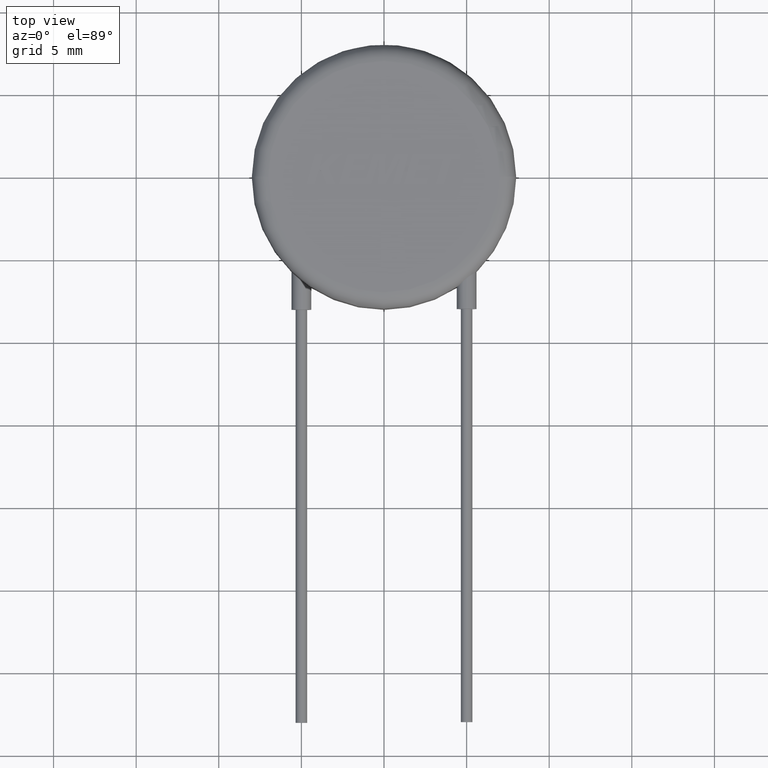
[diagram: clean part render]
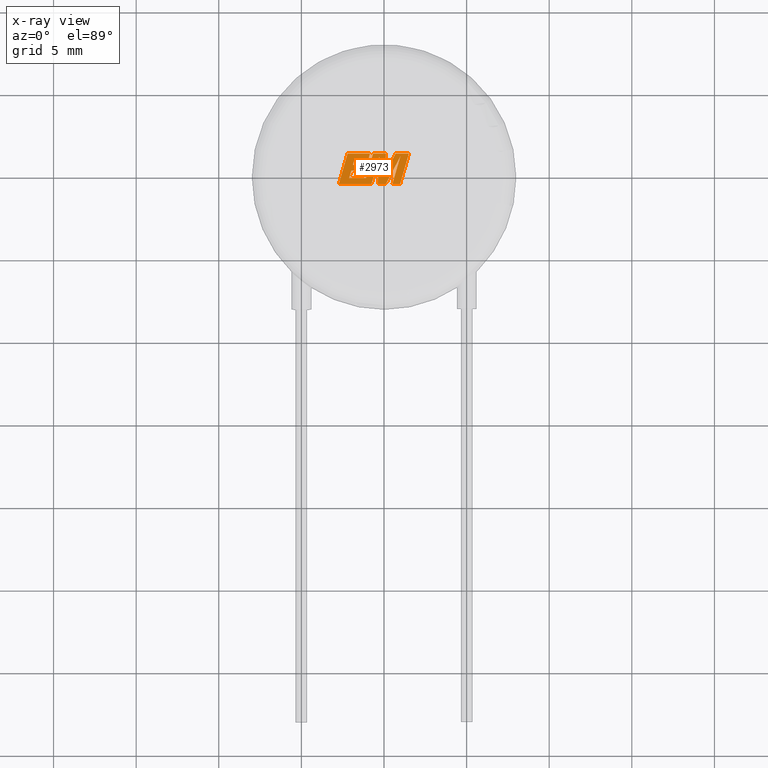
[diagram: x-ray — body ghosted, one internal face saturated and labeled with its STEP entity id]
A machine part, top view, then the same camera in x-ray: the body is ghosted and one INTERNAL B-rep face — a face not visible from any outside direction — is saturated and labeled: STEP entity #2973.
In plain terms, the highlighted planar face has unit normal (0, 0, -1).
Its self-contained STEP definition (entity closure, byte-faithful):
#1 = VERTEX_POINT ( 'NONE', #2518 ) ;
#6 = CARTESIAN_POINT ( 'NONE',  ( -0.8469343040770292985, 1.392404873501481344, 4.998999999999999666 ) ) ;
#16 = ORIENTED_EDGE ( 'NONE', *, *, #776, .F. ) ;
#18 = VERTEX_POINT ( 'NONE', #1459 ) ;
#39 = CARTESIAN_POINT ( 'NONE',  ( 1.506768792901826970, 1.392404873501481788, 4.998999999999999666 ) ) ;
#41 = CARTESIAN_POINT ( 'NONE',  ( -1.883600881883110478, 0.7004086037278132171, 4.998999999999999666 ) ) ;
#48 = ORIENTED_EDGE ( 'NONE', *, *, #299, .F. ) ;
#73 = VERTEX_POINT ( 'NONE', #3334 ) ;
#111 = LINE ( 'NONE', #2769, #1698 ) ;
#160 = CARTESIAN_POINT ( 'NONE',  ( -0.6635320626051351978, 1.392404873501481344, 4.998999999999999666 ) ) ;
#161 = CARTESIAN_POINT ( 'NONE',  ( -0.7535615206849134440, -0.4463250368678168267, 4.998999999999999666 ) ) ;
#209 = EDGE_CURVE ( 'NONE', #2690, #2967, #681, .T. ) ;
#218 = CARTESIAN_POINT ( 'NONE',  ( -1.191487204261650668, 0.3604905181520938751, 4.998999999999999666 ) ) ;
#231 = ORIENTED_EDGE ( 'NONE', *, *, #3189, .F. ) ;
#233 = CARTESIAN_POINT ( 'NONE',  ( 0.9781203858598551681, -0.4463250368678163826, 4.998999999999999666 ) ) ;
#259 = DIRECTION ( 'NONE',  ( 0.2732148821745907785, 0.9619530280415590218, 0.000000000000000000 ) ) ;
#265 = VECTOR ( 'NONE', #1902, 1000.000000000000000 ) ;
#299 = EDGE_CURVE ( 'NONE', #786, #1903, #2723, .T. ) ;
#301 = EDGE_CURVE ( 'NONE', #1719, #1250, #2473, .T. ) ;
#315 = CARTESIAN_POINT ( 'NONE',  ( -0.7535615206849134440, -0.4463250368678168267, 4.998999999999999666 ) ) ;
#322 = LINE ( 'NONE', #2539, #3060 ) ;
#349 = ORIENTED_EDGE ( 'NONE', *, *, #1968, .F. ) ;
#363 = LINE ( 'NONE', #39, #1127 ) ;
#484 = VERTEX_POINT ( 'NONE', #561 ) ;
#509 = VERTEX_POINT ( 'NONE', #2726 ) ;
#550 = LINE ( 'NONE', #2145, #3396 ) ;
#557 = ORIENTED_EDGE ( 'NONE', *, *, #2183, .F. ) ;
#561 = CARTESIAN_POINT ( 'NONE',  ( -1.191487204261650668, 0.3604905181520938751, 4.998999999999999666 ) ) ;
#575 = LINE ( 'NONE', #1614, #2347 ) ;
#576 = VECTOR ( 'NONE', #2168, 1000.000000000000000 ) ;
#581 = CARTESIAN_POINT ( 'NONE',  ( 0.7003143599246278717, 1.392404873501481788, 4.998999999999999666 ) ) ;
#616 = CARTESIAN_POINT ( 'NONE',  ( -0.3752957953616926079, -0.4463250368678168267, 4.998999999999999666 ) ) ;
#633 = VECTOR ( 'NONE', #1355, 1000.000000000000000 ) ;
#651 = LINE ( 'NONE', #2004, #2733 ) ;
#661 = EDGE_CURVE ( 'NONE', #2805, #2080, #716, .T. ) ;
#677 = LINE ( 'NONE', #859, #1660 ) ;
#680 = ORIENTED_EDGE ( 'NONE', *, *, #2579, .F. ) ;
#681 = LINE ( 'NONE', #3169, #3208 ) ;
#709 = DIRECTION ( 'NONE',  ( -1.000000000000000000, 0.000000000000000000, 0.000000000000000000 ) ) ;
#715 = LINE ( 'NONE', #218, #2175 ) ;
#716 = LINE ( 'NONE', #3381, #1282 ) ;
#733 = DIRECTION ( 'NONE',  ( 0.2763139702539118003, 0.9610674221107071702, 0.000000000000000000 ) ) ;
#738 = FACE_OUTER_BOUND ( 'NONE', #1958, .T. ) ;
#744 = ORIENTED_EDGE ( 'NONE', *, *, #3082, .F. ) ;
#763 = VERTEX_POINT ( 'NONE', #1099 ) ;
#776 = EDGE_CURVE ( 'NONE', #2633, #2012, #1649, .T. ) ;
#786 = VERTEX_POINT ( 'NONE', #1849 ) ;
#806 = CARTESIAN_POINT ( 'NONE',  ( 1.506768792901826970, 1.392404873501481788, 4.998999999999999666 ) ) ;
#859 = CARTESIAN_POINT ( 'NONE',  ( -1.980579764965901823, 0.3604905181520938751, 4.998999999999999666 ) ) ;
#889 = DIRECTION ( 'NONE',  ( 0.4668459304955209777, 0.8843386665637612554, 0.000000000000000000 ) ) ;
#934 = ORIENTED_EDGE ( 'NONE', *, *, #2793, .F. ) ;
#1025 = ORIENTED_EDGE ( 'NONE', *, *, #2359, .F. ) ;
#1088 = EDGE_CURVE ( 'NONE', #2080, #509, #363, .T. ) ;
#1099 = CARTESIAN_POINT ( 'NONE',  ( 0.04880565978952582096, 0.07879260075274539810, 4.998999999999999666 ) ) ;
#1111 = DIRECTION ( 'NONE',  ( 0.2793947940878252489, 0.9601763114327606097, 0.000000000000000000 ) ) ;
#1113 = DIRECTION ( 'NONE',  ( 0.05375259206908304666, 0.9985542843760947251, 0.000000000000000000 ) ) ;
#1127 = VECTOR ( 'NONE', #1436, 1000.000000000000000 ) ;
#1135 = ORIENTED_EDGE ( 'NONE', *, *, #301, .F. ) ;
#1164 = EDGE_CURVE ( 'NONE', #2153, #1548, #3137, .T. ) ;
#1190 = LINE ( 'NONE', #1663, #2501 ) ;
#1216 = CARTESIAN_POINT ( 'NONE',  ( -1.883600881883110478, 0.7004086037278132171, 4.998999999999999666 ) ) ;
#1250 = VERTEX_POINT ( 'NONE', #1821 ) ;
#1267 = ORIENTED_EDGE ( 'NONE', *, *, #661, .F. ) ;
#1269 = DIRECTION ( 'NONE',  ( -0.2760118818968562704, -0.9611542233438689076, 0.000000000000000000 ) ) ;
#1282 = VECTOR ( 'NONE', #733, 1000.000000000000114 ) ;
#1293 = LINE ( 'NONE', #2925, #576 ) ;
#1311 = EDGE_CURVE ( 'NONE', #2776, #786, #2996, .T. ) ;
#1330 = ORIENTED_EDGE ( 'NONE', *, *, #1834, .F. ) ;
#1355 = DIRECTION ( 'NONE',  ( 1.000000000000000000, 0.000000000000000000, 0.000000000000000000 ) ) ;
#1359 = ORIENTED_EDGE ( 'NONE', *, *, #2444, .F. ) ;
#1370 = CARTESIAN_POINT ( 'NONE',  ( -0.9463396160344149655, 1.042412076331241000, 4.998999999999999666 ) ) ;
#1436 = DIRECTION ( 'NONE',  ( -1.000000000000000000, 0.000000000000000000, 0.000000000000000000 ) ) ;
#1455 = CARTESIAN_POINT ( 'NONE',  ( -2.205326341746206342, 1.392404873501480900, 4.998999999999999666 ) ) ;
#1459 = CARTESIAN_POINT ( 'NONE',  ( -2.734438790809887276, -0.4463250368678172153, 4.998999999999999666 ) ) ;
#1523 = LINE ( 'NONE', #2349, #3351 ) ;
#1540 = LINE ( 'NONE', #41, #3408 ) ;
#1541 = VECTOR ( 'NONE', #709, 1000.000000000000000 ) ;
#1548 = VERTEX_POINT ( 'NONE', #2419 ) ;
#1588 = CARTESIAN_POINT ( 'NONE',  ( 0.5108706928720705420, -0.4463250368678163826, 4.998999999999999666 ) ) ;
#1614 = CARTESIAN_POINT ( 'NONE',  ( 0.04880565978952582096, 0.07879260075274539810, 4.998999999999999666 ) ) ;
#1620 = VERTEX_POINT ( 'NONE', #1455 ) ;
#1628 = CARTESIAN_POINT ( 'NONE',  ( -2.110790660100091198, -0.09650555604264220155, 4.998999999999999666 ) ) ;
#1640 = CARTESIAN_POINT ( 'NONE',  ( 0.1195179542924952598, 1.392404873501481344, 4.998999999999999666 ) ) ;
#1649 = LINE ( 'NONE', #2382, #265 ) ;
#1660 = VECTOR ( 'NONE', #2843, 1000.000000000000000 ) ;
#1663 = CARTESIAN_POINT ( 'NONE',  ( -0.8469343040770292985, 1.392404873501481344, 4.998999999999999666 ) ) ;
#1671 = VERTEX_POINT ( 'NONE', #1216 ) ;
#1698 = VECTOR ( 'NONE', #3003, 1000.000000000000227 ) ;
#1710 = DIRECTION ( 'NONE',  ( -1.000000000000000000, 2.630718451273292658E-16, 0.000000000000000000 ) ) ;
#1719 = VERTEX_POINT ( 'NONE', #161 ) ;
#1731 = DIRECTION ( 'NONE',  ( -1.000000000000000000, -1.516487192649569781E-16, 0.000000000000000000 ) ) ;
#1744 = VECTOR ( 'NONE', #259, 1000.000000000000114 ) ;
#1821 = CARTESIAN_POINT ( 'NONE',  ( -0.2835387661257833258, 1.190647871675215352, 4.998999999999999666 ) ) ;
#1834 = EDGE_CURVE ( 'NONE', #18, #1719, #1293, .T. ) ;
#1849 = CARTESIAN_POINT ( 'NONE',  ( -0.9463396160344149655, 1.042412076331241000, 4.998999999999999666 ) ) ;
#1902 = DIRECTION ( 'NONE',  ( 0.2740217765954052198, 0.9617234872620600283, 0.000000000000000000 ) ) ;
#1903 = VERTEX_POINT ( 'NONE', #6 ) ;
#1952 = EDGE_CURVE ( 'NONE', #2764, #73, #111, .T. ) ;
#1958 = EDGE_LOOP ( 'NONE', ( #2902, #1267, #1025, #3326, #349, #2647, #2931, #1135, #1330, #3404, #2105, #48, #3000, #680, #934, #231, #744, #16, #557, #3065, #2751, #3496, #1359 ) ) ;
#1959 = PLANE ( 'NONE',  #2959 ) ;
#1968 = EDGE_CURVE ( 'NONE', #1548, #2690, #651, .T. ) ;
#1987 = CARTESIAN_POINT ( 'NONE',  ( -1.980579764965901823, 0.3604905181520938751, 4.998999999999999666 ) ) ;
#1989 = EDGE_CURVE ( 'NONE', #1903, #1620, #1190, .T. ) ;
#2004 = CARTESIAN_POINT ( 'NONE',  ( 0.1148931549349949816, -0.4463250368678166047, 4.998999999999999666 ) ) ;
#2012 = VERTEX_POINT ( 'NONE', #1987 ) ;
#2074 = CARTESIAN_POINT ( 'NONE',  ( -1.094396504180112695, 0.7004086037278132171, 4.998999999999999666 ) ) ;
#2080 = VERTEX_POINT ( 'NONE', #806 ) ;
#2096 = EDGE_CURVE ( 'NONE', #1250, #2153, #550, .T. ) ;
#2105 = ORIENTED_EDGE ( 'NONE', *, *, #1989, .F. ) ;
#2145 = CARTESIAN_POINT ( 'NONE',  ( -0.2835387661257833258, 1.190647871675215352, 4.998999999999999666 ) ) ;
#2153 = VERTEX_POINT ( 'NONE', #616 ) ;
#2168 = DIRECTION ( 'NONE',  ( 1.000000000000000000, 3.147047691633606937E-16, 0.000000000000000000 ) ) ;
#2175 = VECTOR ( 'NONE', #3184, 1000.000000000000114 ) ;
#2183 = EDGE_CURVE ( 'NONE', #73, #2633, #322, .T. ) ;
#2249 = DIRECTION ( 'NONE',  ( 0.000000000000000000, 0.000000000000000000, -1.000000000000000000 ) ) ;
#2274 = DIRECTION ( 'NONE',  ( -1.000000000000000000, 0.000000000000000000, 0.000000000000000000 ) ) ;
#2313 = LINE ( 'NONE', #2344, #1541 ) ;
#2343 = DIRECTION ( 'NONE',  ( 1.000000000000000000, 4.202428729728918664E-16, 0.000000000000000000 ) ) ;
#2344 = CARTESIAN_POINT ( 'NONE',  ( -1.094396504180112695, 0.7004086037278132171, 4.998999999999999666 ) ) ;
#2347 = VECTOR ( 'NONE', #1113, 1000.000000000000114 ) ;
#2349 = CARTESIAN_POINT ( 'NONE',  ( -2.205326341746206342, 1.392404873501480900, 4.998999999999999666 ) ) ;
#2359 = EDGE_CURVE ( 'NONE', #2967, #2805, #2389, .T. ) ;
#2375 = VECTOR ( 'NONE', #2457, 1000.000000000000114 ) ;
#2382 = CARTESIAN_POINT ( 'NONE',  ( -2.110790660100091198, -0.09650555604264220155, 4.998999999999999666 ) ) ;
#2389 = LINE ( 'NONE', #1588, #633 ) ;
#2392 = VECTOR ( 'NONE', #3032, 1000.000000000000114 ) ;
#2419 = CARTESIAN_POINT ( 'NONE',  ( 0.1148931549349949816, -0.4463250368678166047, 4.998999999999999666 ) ) ;
#2442 = EDGE_CURVE ( 'NONE', #1, #2764, #3258, .T. ) ;
#2444 = EDGE_CURVE ( 'NONE', #509, #763, #2731, .T. ) ;
#2457 = DIRECTION ( 'NONE',  ( 0.2759782365590628395, 0.9611638845408986276, 0.000000000000000000 ) ) ;
#2473 = LINE ( 'NONE', #315, #2375 ) ;
#2501 = VECTOR ( 'NONE', #1731, 1000.000000000000000 ) ;
#2518 = CARTESIAN_POINT ( 'NONE',  ( 0.1195179542924952598, 1.392404873501481344, 4.998999999999999666 ) ) ;
#2530 = CARTESIAN_POINT ( 'NONE',  ( 0.1208269369785772845, 0.4016925331810349831, 4.998999999999997890 ) ) ;
#2539 = CARTESIAN_POINT ( 'NONE',  ( -1.091500443915926599, -0.09650555604264220155, 4.998999999999999666 ) ) ;
#2557 = EDGE_CURVE ( 'NONE', #1620, #18, #1523, .T. ) ;
#2579 = EDGE_CURVE ( 'NONE', #1671, #2776, #1540, .T. ) ;
#2633 = VERTEX_POINT ( 'NONE', #1628 ) ;
#2647 = ORIENTED_EDGE ( 'NONE', *, *, #1164, .F. ) ;
#2690 = VERTEX_POINT ( 'NONE', #3039 ) ;
#2723 = LINE ( 'NONE', #1370, #1744 ) ;
#2726 = CARTESIAN_POINT ( 'NONE',  ( 0.7003143599246278717, 1.392404873501481788, 4.998999999999999666 ) ) ;
#2731 = LINE ( 'NONE', #581, #2392 ) ;
#2733 = VECTOR ( 'NONE', #889, 1000.000000000000227 ) ;
#2751 = ORIENTED_EDGE ( 'NONE', *, *, #2442, .F. ) ;
#2764 = VERTEX_POINT ( 'NONE', #160 ) ;
#2769 = CARTESIAN_POINT ( 'NONE',  ( -0.6635320626051351978, 1.392404873501481344, 4.998999999999999666 ) ) ;
#2776 = VERTEX_POINT ( 'NONE', #3393 ) ;
#2793 = EDGE_CURVE ( 'NONE', #3421, #1671, #2313, .T. ) ;
#2805 = VERTEX_POINT ( 'NONE', #233 ) ;
#2843 = DIRECTION ( 'NONE',  ( 1.000000000000000000, 0.000000000000000000, 0.000000000000000000 ) ) ;
#2854 = CARTESIAN_POINT ( 'NONE',  ( -0.3752957953616926079, -0.4463250368678168267, 4.998999999999999666 ) ) ;
#2902 = ORIENTED_EDGE ( 'NONE', *, *, #1088, .F. ) ;
#2925 = CARTESIAN_POINT ( 'NONE',  ( -1.080849876244141416, -0.4463250368678169377, 4.998999999999999666 ) ) ;
#2931 = ORIENTED_EDGE ( 'NONE', *, *, #2096, .F. ) ;
#2959 = AXIS2_PLACEMENT_3D ( 'NONE', #2530, #2249, #3048 ) ;
#2967 = VERTEX_POINT ( 'NONE', #3151 ) ;
#2973 = ADVANCED_FACE ( 'NONE', ( #738 ), #1959, .T. ) ;
#2996 = LINE ( 'NONE', #3276, #3214 ) ;
#3000 = ORIENTED_EDGE ( 'NONE', *, *, #1311, .F. ) ;
#3002 = VECTOR ( 'NONE', #1710, 1000.000000000000000 ) ;
#3003 = DIRECTION ( 'NONE',  ( -0.2762517575166162365, -0.9610853065513906834, 0.000000000000000000 ) ) ;
#3032 = DIRECTION ( 'NONE',  ( -0.4443210308329211822, -0.8958676361826953816, 0.000000000000000000 ) ) ;
#3039 = CARTESIAN_POINT ( 'NONE',  ( 0.9832192410060645038, 1.198530970088394598, 4.998999999999999666 ) ) ;
#3048 = DIRECTION ( 'NONE',  ( -1.000000000000000000, 0.000000000000000000, 0.000000000000000000 ) ) ;
#3060 = VECTOR ( 'NONE', #2274, 1000.000000000000000 ) ;
#3065 = ORIENTED_EDGE ( 'NONE', *, *, #1952, .F. ) ;
#3082 = EDGE_CURVE ( 'NONE', #2012, #484, #677, .T. ) ;
#3137 = LINE ( 'NONE', #2854, #3446 ) ;
#3143 = DIRECTION ( 'NONE',  ( -0.2765379750249959967, -0.9610029908221278117, 0.000000000000000000 ) ) ;
#3151 = CARTESIAN_POINT ( 'NONE',  ( 0.5108706928720705420, -0.4463250368678163826, 4.998999999999999666 ) ) ;
#3169 = CARTESIAN_POINT ( 'NONE',  ( 0.9832192410060645038, 1.198530970088394598, 4.998999999999999666 ) ) ;
#3179 = DIRECTION ( 'NONE',  ( -0.05596501978069263333, -0.9984327301130240251, 0.000000000000000000 ) ) ;
#3184 = DIRECTION ( 'NONE',  ( 0.2746459304916876731, 0.9615454294334485619, 0.000000000000000000 ) ) ;
#3189 = EDGE_CURVE ( 'NONE', #484, #3421, #715, .T. ) ;
#3208 = VECTOR ( 'NONE', #1269, 1000.000000000000227 ) ;
#3214 = VECTOR ( 'NONE', #3428, 1000.000000000000000 ) ;
#3258 = LINE ( 'NONE', #1640, #3002 ) ;
#3271 = EDGE_CURVE ( 'NONE', #763, #1, #575, .T. ) ;
#3276 = CARTESIAN_POINT ( 'NONE',  ( -1.784083752927104971, 1.042412076331241000, 4.998999999999999666 ) ) ;
#3326 = ORIENTED_EDGE ( 'NONE', *, *, #209, .F. ) ;
#3334 = CARTESIAN_POINT ( 'NONE',  ( -1.091500443915926599, -0.09650555604264220155, 4.998999999999999666 ) ) ;
#3351 = VECTOR ( 'NONE', #3143, 1000.000000000000000 ) ;
#3381 = CARTESIAN_POINT ( 'NONE',  ( 0.9781203858598551681, -0.4463250368678163826, 4.998999999999999666 ) ) ;
#3393 = CARTESIAN_POINT ( 'NONE',  ( -1.784083752927104971, 1.042412076331241000, 4.998999999999999666 ) ) ;
#3396 = VECTOR ( 'NONE', #3179, 1000.000000000000114 ) ;
#3404 = ORIENTED_EDGE ( 'NONE', *, *, #2557, .F. ) ;
#3408 = VECTOR ( 'NONE', #1111, 1000.000000000000114 ) ;
#3421 = VERTEX_POINT ( 'NONE', #2074 ) ;
#3428 = DIRECTION ( 'NONE',  ( 1.000000000000000000, 0.000000000000000000, 0.000000000000000000 ) ) ;
#3446 = VECTOR ( 'NONE', #2343, 1000.000000000000000 ) ;
#3496 = ORIENTED_EDGE ( 'NONE', *, *, #3271, .F. ) ;